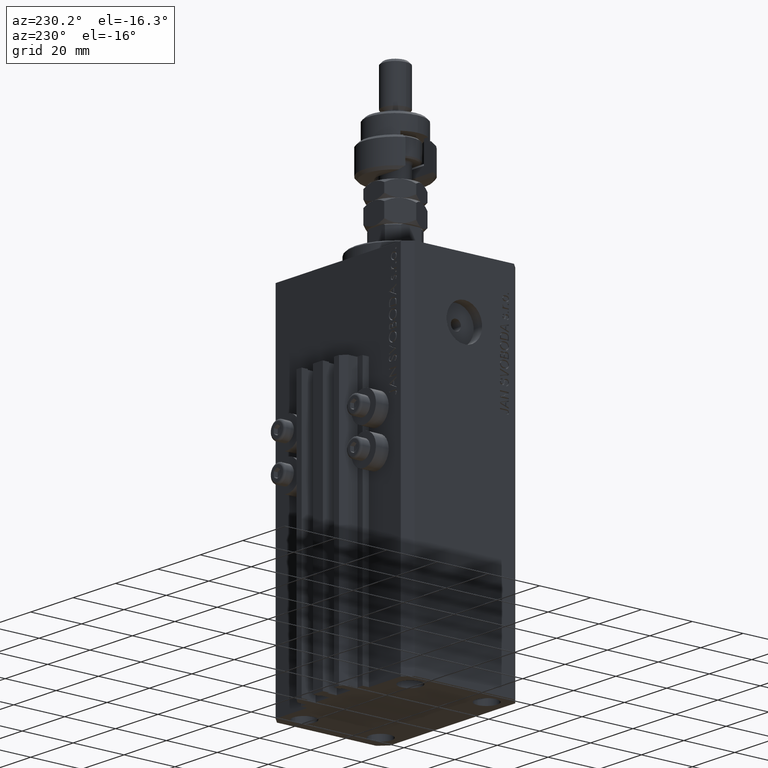
[diagram: clean part render]
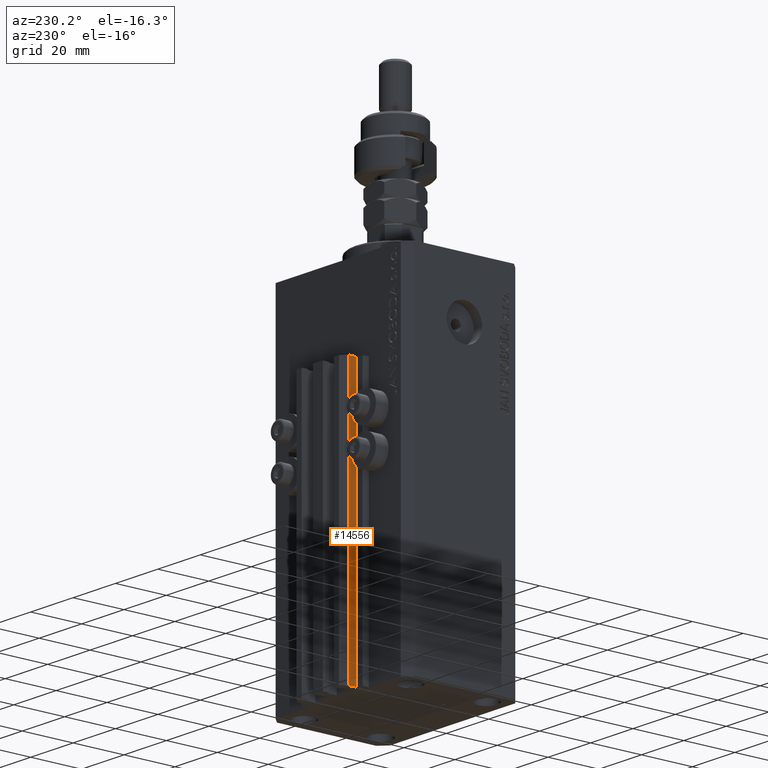
[diagram: same view with one face highlighted and labeled with its STEP entity id]
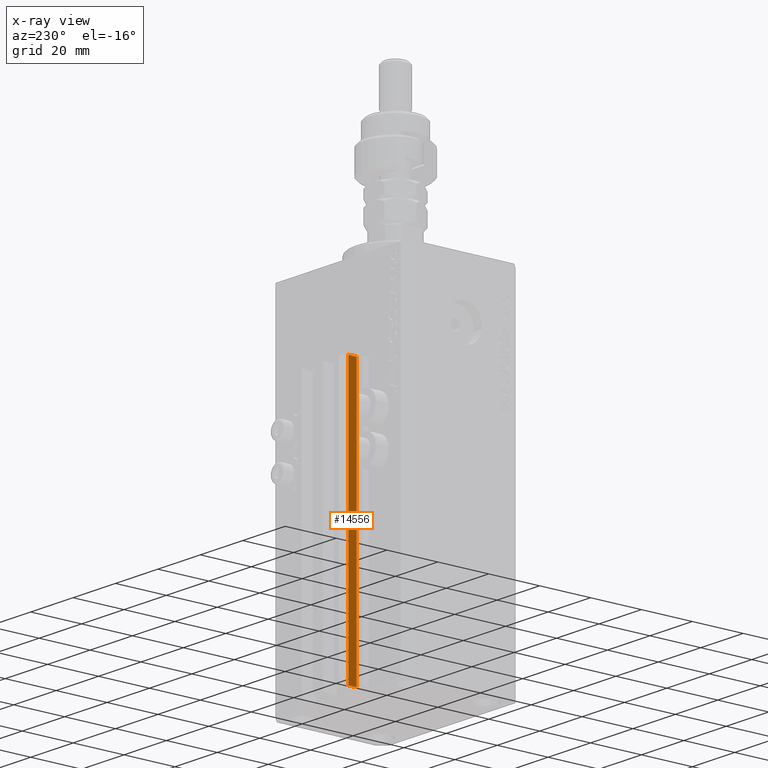
[diagram: x-ray of the same camera — body ghosted, the highlighted face saturated]
A machine part, auxiliary view. The second image highlights one B-rep face of the part: STEP entity #14556.
The next image is the same camera in x-ray: the body ghosted, the highlighted face saturated — about 0% of this face is hidden behind the body in this view.
In plain terms, the highlighted planar face has unit normal (-1, 0, 0).
Its self-contained STEP definition (entity closure, byte-faithful):
#4 = CARTESIAN_POINT ( 'NONE',  ( -12.00000000000000000, 28.49999999999948841, -137.0000000000000000 ) ) ;
#4098 = LINE ( 'NONE', #39019, #19558 ) ;
#6576 = VECTOR ( 'NONE', #15405, 1000.000000000000000 ) ;
#7673 = DIRECTION ( 'NONE',  ( 0.000000000000000000, -1.000000000000000000, 0.000000000000000000 ) ) ;
#10990 = FACE_OUTER_BOUND ( 'NONE', #40804, .T. ) ;
#11469 = CARTESIAN_POINT ( 'NONE',  ( -12.00000000000000000, 28.49999999999948841, -33.00000000000000000 ) ) ;
#11638 = EDGE_CURVE ( 'NONE', #49711, #34312, #19318, .T. ) ;
#13661 = VERTEX_POINT ( 'NONE', #47452 ) ;
#14556 = ADVANCED_FACE ( 'NONE', ( #10990 ), #38081, .T. ) ;
#15405 = DIRECTION ( 'NONE',  ( 0.000000000000000000, -1.000000000000000000, 0.000000000000000000 ) ) ;
#16074 = EDGE_CURVE ( 'NONE', #13661, #34312, #16288, .T. ) ;
#16288 = LINE ( 'NONE', #39357, #40035 ) ;
#17358 = VECTOR ( 'NONE', #7673, 1000.000000000000000 ) ;
#18085 = DIRECTION ( 'NONE',  ( -1.000000000000000000, 0.000000000000000000, 0.000000000000000000 ) ) ;
#19318 = LINE ( 'NONE', #11469, #17358 ) ;
#19558 = VECTOR ( 'NONE', #46833, 1000.000000000000000 ) ;
#20166 = ORIENTED_EDGE ( 'NONE', *, *, #11638, .F. ) ;
#20551 = CARTESIAN_POINT ( 'NONE',  ( -12.00000000000000000, 25.19999999999949125, -33.00000000000000000 ) ) ;
#24242 = LINE ( 'NONE', #4, #6576 ) ;
#24419 = CARTESIAN_POINT ( 'NONE',  ( -12.00000000000000000, 28.49999999999948841, -137.0000000000000000 ) ) ;
#28332 = ORIENTED_EDGE ( 'NONE', *, *, #16074, .T. ) ;
#34022 = DIRECTION ( 'NONE',  ( 0.000000000000000000, 0.000000000000000000, 1.000000000000000000 ) ) ;
#34312 = VERTEX_POINT ( 'NONE', #20551 ) ;
#35292 = DIRECTION ( 'NONE',  ( 0.000000000000000000, 0.000000000000000000, 1.000000000000000000 ) ) ;
#37481 = EDGE_CURVE ( 'NONE', #44688, #13661, #24242, .T. ) ;
#38081 = PLANE ( 'NONE',  #47240 ) ;
#38916 = EDGE_CURVE ( 'NONE', #44688, #49711, #4098, .T. ) ;
#39019 = CARTESIAN_POINT ( 'NONE',  ( -12.00000000000000000, 28.49999999999948841, -137.0000000000000000 ) ) ;
#39357 = CARTESIAN_POINT ( 'NONE',  ( -12.00000000000000000, 25.19999999999949125, -137.0000000000000000 ) ) ;
#40035 = VECTOR ( 'NONE', #35292, 1000.000000000000000 ) ;
#40804 = EDGE_LOOP ( 'NONE', ( #20166, #48122, #43839, #28332 ) ) ;
#43839 = ORIENTED_EDGE ( 'NONE', *, *, #37481, .T. ) ;
#44688 = VERTEX_POINT ( 'NONE', #24419 ) ;
#45663 = CARTESIAN_POINT ( 'NONE',  ( -12.00000000000000000, 28.49999999999948841, -137.0000000000000000 ) ) ;
#46833 = DIRECTION ( 'NONE',  ( 0.000000000000000000, 0.000000000000000000, 1.000000000000000000 ) ) ;
#47240 = AXIS2_PLACEMENT_3D ( 'NONE', #45663, #18085, #34022 ) ;
#47416 = CARTESIAN_POINT ( 'NONE',  ( -12.00000000000000000, 28.49999999999948841, -33.00000000000000000 ) ) ;
#47452 = CARTESIAN_POINT ( 'NONE',  ( -12.00000000000000000, 25.19999999999949125, -137.0000000000000000 ) ) ;
#48122 = ORIENTED_EDGE ( 'NONE', *, *, #38916, .F. ) ;
#49711 = VERTEX_POINT ( 'NONE', #47416 ) ;